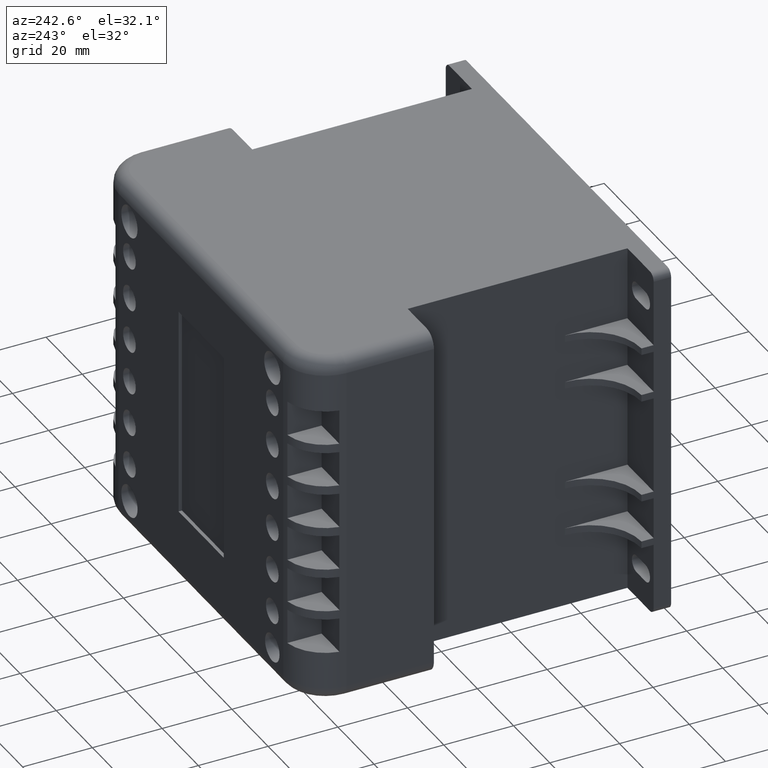
[diagram: clean part render]
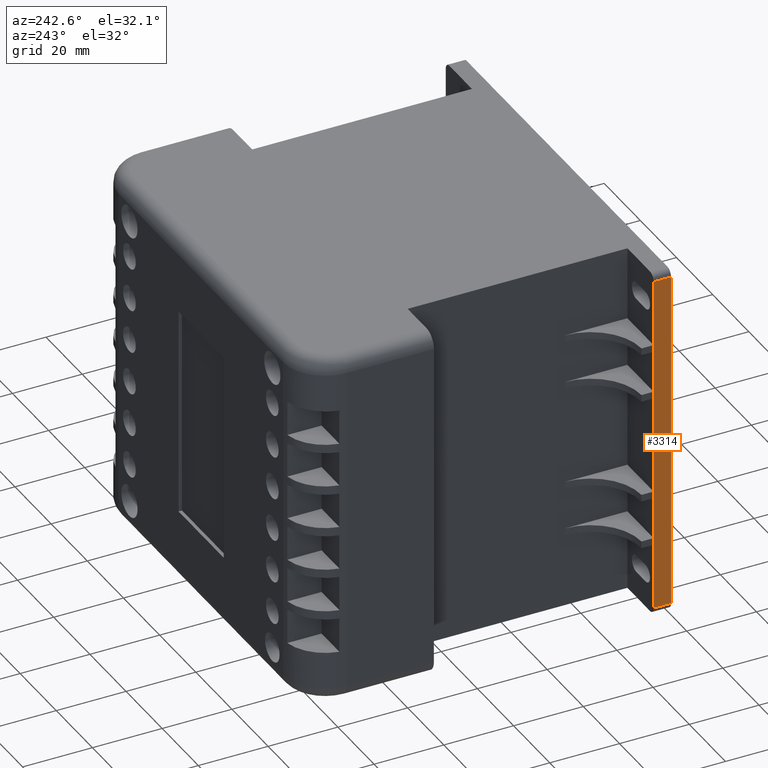
[diagram: same view with one face highlighted and labeled with its STEP entity id]
A machine part, auxiliary view. The second image highlights one B-rep face of the part: STEP entity #3314.
In plain terms, the highlighted planar face has unit normal (-1, 0, 0).
Its self-contained STEP definition (entity closure, byte-faithful):
#275=FACE_OUTER_BOUND('',#478,.T.);
#478=EDGE_LOOP('',(#2194,#2195,#2196,#2197));
#752=LINE('',#5056,#1072);
#753=LINE('',#5059,#1073);
#754=LINE('',#5061,#1074);
#755=LINE('',#5062,#1075);
#1072=VECTOR('',#4083,10.);
#1073=VECTOR('',#4086,10.);
#1074=VECTOR('',#4087,10.);
#1075=VECTOR('',#4088,10.);
#1384=VERTEX_POINT('',#5052);
#1385=VERTEX_POINT('',#5054);
#1386=VERTEX_POINT('',#5058);
#1387=VERTEX_POINT('',#5060);
#1702=EDGE_CURVE('',#1384,#1385,#752,.T.);
#1703=EDGE_CURVE('',#1386,#1384,#753,.T.);
#1704=EDGE_CURVE('',#1387,#1385,#754,.T.);
#1705=EDGE_CURVE('',#1386,#1387,#755,.T.);
#2194=ORIENTED_EDGE('',*,*,#1703,.T.);
#2195=ORIENTED_EDGE('',*,*,#1702,.T.);
#2196=ORIENTED_EDGE('',*,*,#1704,.F.);
#2197=ORIENTED_EDGE('',*,*,#1705,.F.);
#2940=PLANE('',#3637);
#3314=ADVANCED_FACE('',(#275),#2940,.T.);
#3637=AXIS2_PLACEMENT_3D('',#5057,#4084,#4085);
#4083=DIRECTION('',(0.,1.,0.));
#4084=DIRECTION('center_axis',(-1.,0.,1.81260901979617E-16));
#4085=DIRECTION('ref_axis',(1.81260901979617E-16,0.,1.));
#4086=DIRECTION('',(1.81260901979617E-16,0.,1.));
#4087=DIRECTION('',(1.81260901979617E-16,0.,1.));
#4088=DIRECTION('',(0.,1.,0.));
#5052=CARTESIAN_POINT('',(-115.,0.,100.));
#5054=CARTESIAN_POINT('',(-115.,5.,100.));
#5056=CARTESIAN_POINT('',(-115.,0.,100.));
#5057=CARTESIAN_POINT('Origin',(-115.,0.,2.));
#5058=CARTESIAN_POINT('',(-115.,0.,2.));
#5059=CARTESIAN_POINT('',(-115.,0.,2.));
#5060=CARTESIAN_POINT('',(-115.,5.,2.));
#5061=CARTESIAN_POINT('',(-115.,5.,2.));
#5062=CARTESIAN_POINT('',(-115.,0.,2.));